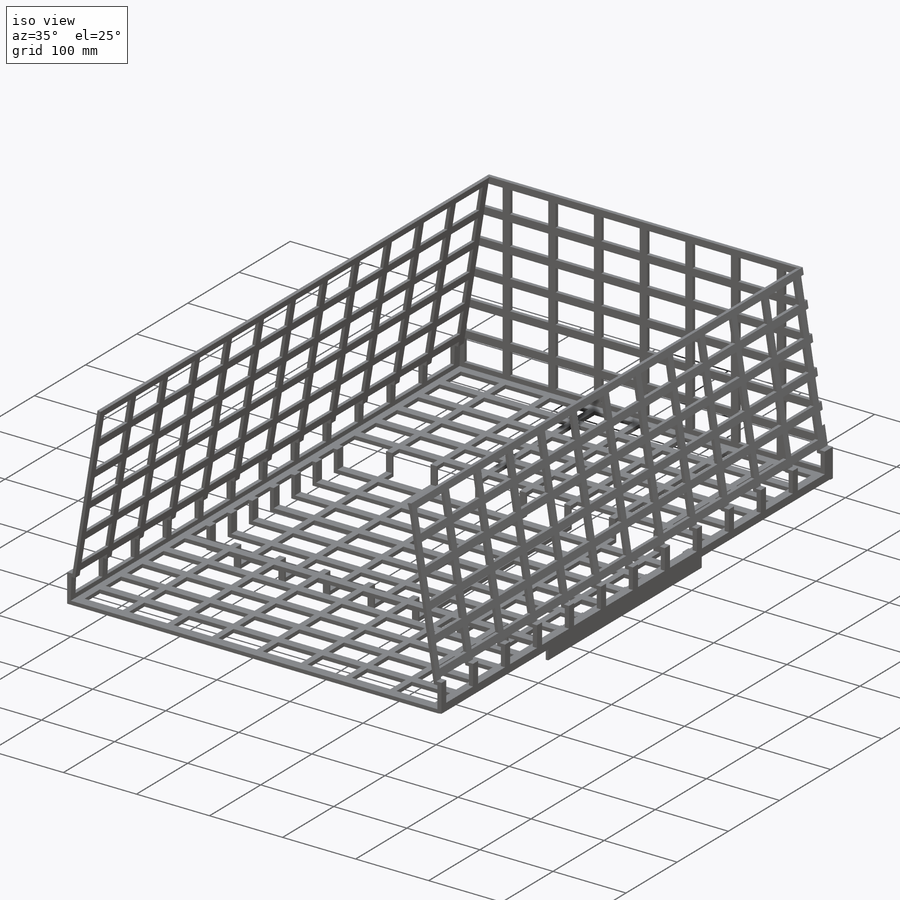
[diagram: iso view]
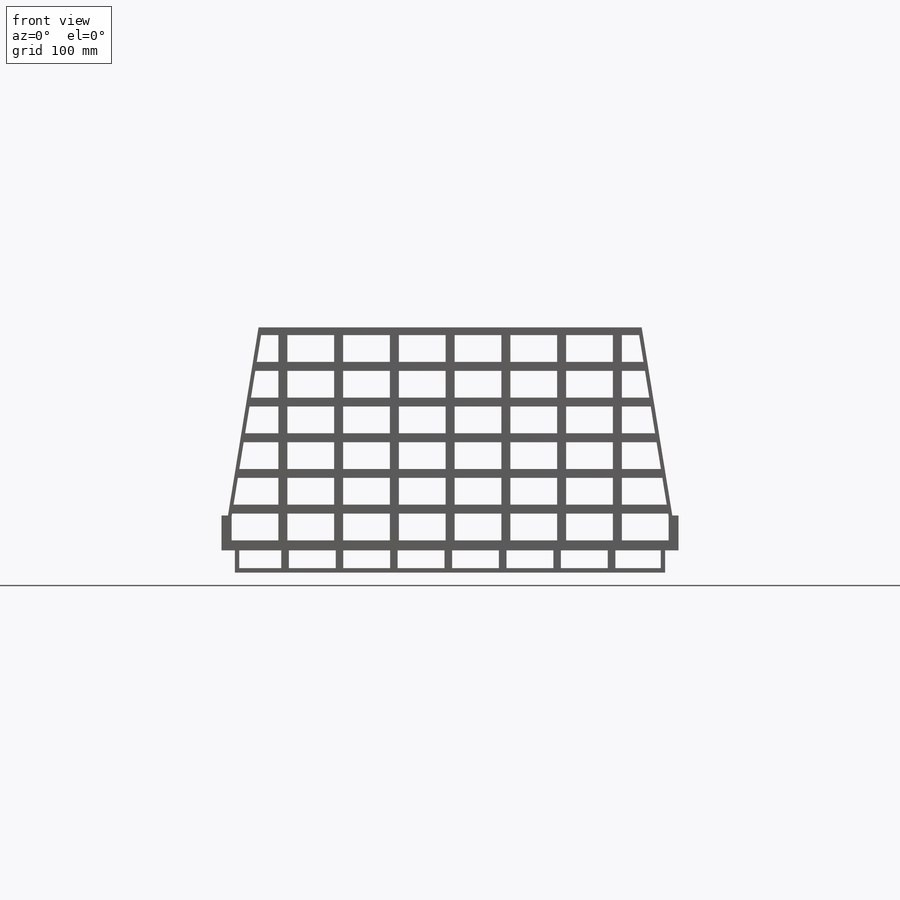
[diagram: front view]
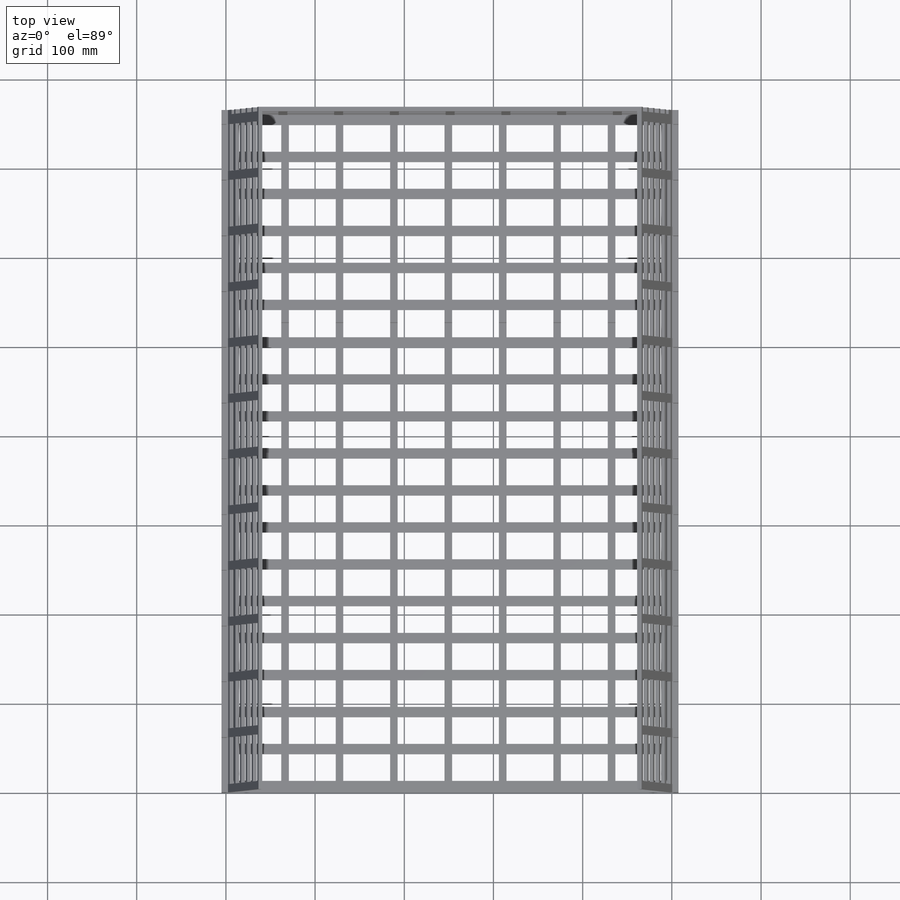
[diagram: top view]
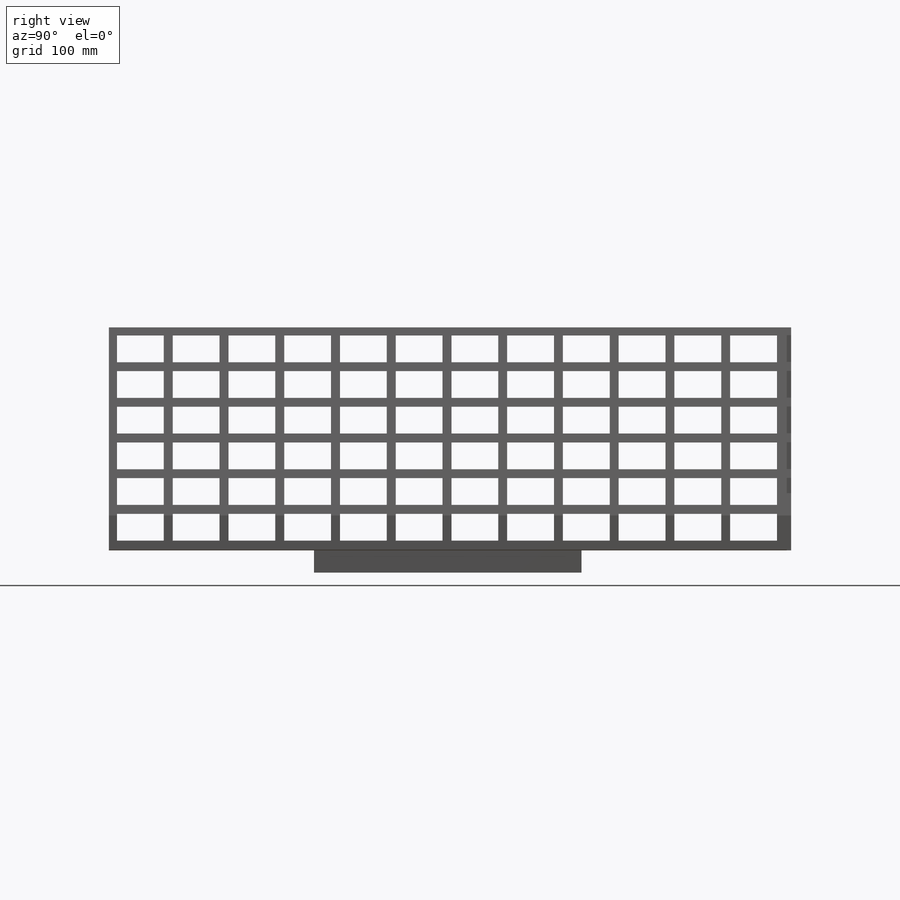
[diagram: right view]
SOLIDWORKS PART (.sldprt)
format: sldprt  version: not decoded by parser v0  size: 2,552,832 bytes
history: native  units: mm
features: sketch x14, cut_extrude x9, extrude x5, material x1 + 1 further entry (+11 scaffold rows collapsed)
feature tree (41):
  scaffold x11  (default folders/planes/origin — collapsed)
  material  "Material <not specified>"
  "Annotations"  RD1=502.5mm RD2=760mm
  sketch  "Sketch1"  dims[c1.D1=~95.425112mm c1.D2=~125.99218mm c2.D1=760.0mm c2.D2=502.5mm]
  extrude  "Boss-Extrude1"  Depth=5mm
  sketch  "Sketch2"  dims[c1.D1=300.0mm c1.D2=150.0mm c2.D1=10.0mm c2.D2=10.0mm]
  extrude  "Boss-Extrude2"  Depth=30mm
  sketch  "Sketch4"  dims[c1.D1=~157.305453mm c1.D2=501.7mm c2.D1=250.0mm]
  extrude  "Boss-Extrude3"  Depth=5mm
  sketch  "Sketch5"  dims[D1=250.0mm D2=765.0mm]
  extrude  "Boss-Extrude4"  Depth=5mm
  sketch  "Sketch6"  dims[D1=250.0mm D2=765.0mm]
  extrude  "Boss-Extrude5"  Depth=5mm
  sketch  "Sketch7"  dims[c1.D1=~23.989262mm c1.D2=~0.710052mm c2.D1=~31.67601mm c2.D2=52.5mm c2.D3=10.0mm c2.D5=30.0mm c2.D6=10.0mm c3.D1=12.0 c3.D4=6.0]
  cut_extrude  "Cut-Extrude2"  [1 undecoded]
  sketch  "Sketch8"  dims[c1.D1=~28.955916mm c1.D2=~51.706992mm c2.D1=30.0mm c2.D2=52.5mm c2.D5=10.0mm c2.D3=8.0 c2.D4=6.0]
  cut_extrude  "Cut-Extrude3"  Depth=5mm
  sketch  "Sketch9"  dims[c1.D1=~45.944551mm c1.D2=~106.591357mm c2.D1=30.0mm c2.D2=52.5mm c2.D3=8.0 c2.D4=18.0]
  cut_extrude  "Cut-Extrude4"  [1 undecoded]
  sketch  "Sketch10"  dims[c1.D1=5.0mm c1.D2=~267.654943mm c2.D2=~22.02298deg c3.D2=~248.125108mm c4.D2=9.24deg c4.D3=~28.345412mm c5.D2=~207.597995mm c6.D2=9.24deg c6.D3=~53.768813mm]
  cut_extrude  "Cut-Extrude5"  Depth=5mm
  sketch  "Sketch11"  dims[D1=~8.367897mm]
  cut_extrude  "Cut-Extrude6"  Depth=5mm
  sketch  "Sketch12"  dims[D1=~3.487575mm]
  cut_extrude  "Cut-Extrude7"  Depth=5mm
  sketch  "Sketch13"  dims[c1.D1=5.0mm c1.D2=~6.012732mm c2.D1=~29.598221mm]
  cut_extrude  "Cut-Extrude8"  Depth=5mm
  sketch  "Sketch15"  dims[D1=~210.991049mm]
  cut_extrude  "Cut-Extrude10"  Depth=5mm
  sketch  "Sketch3"  dims[c1.D1=295.0mm c1.D2=~239.475776mm c2.D1=15.0mm c2.D2=15.0mm c3.D1=295.0mm]
  cut_extrude  "Cut-Extrude1"  Depth=25mm
decode coverage: 26 of 28 modeling features carry decoded parameters; 1 rows unclassified (native names shown)
note: ~ marks probable driven/reference dimensions
note: 2 parameter values undecoded
note: suppression state not decoded; provenance and decode notes live in map.json
